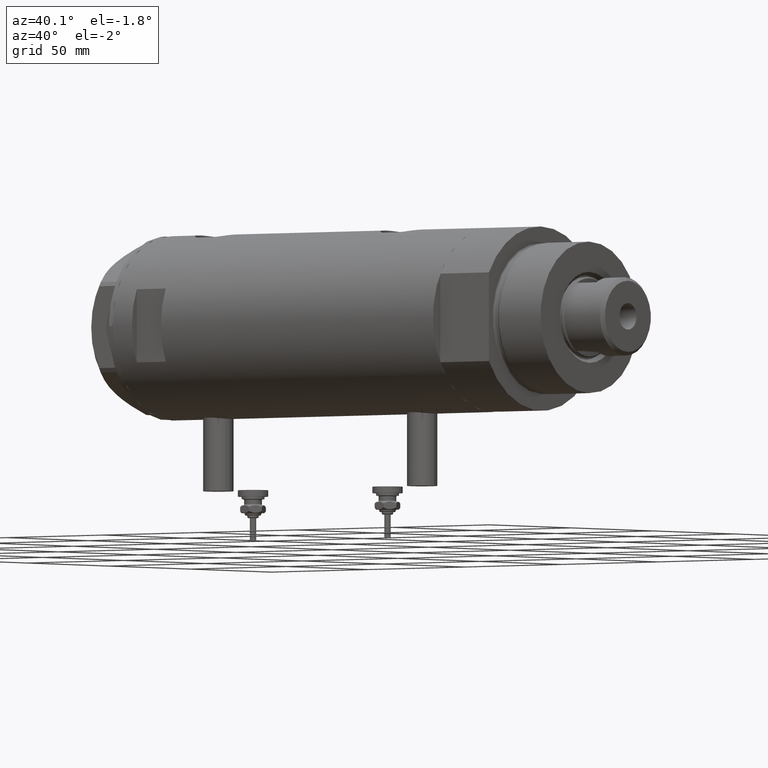
[diagram: clean part render]
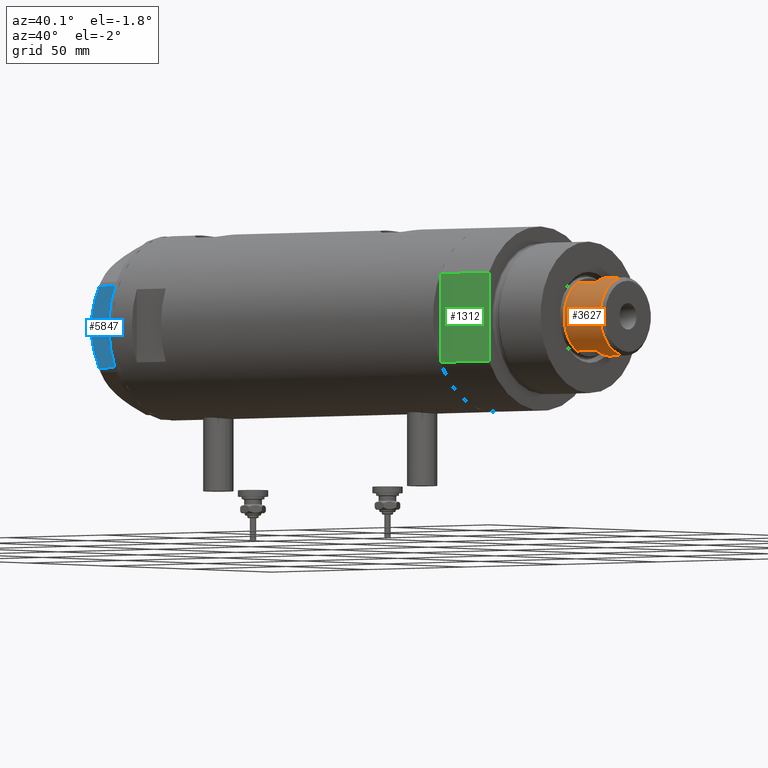
[diagram: same view with three faces highlighted in distinct colors, each labeled with its STEP entity id]
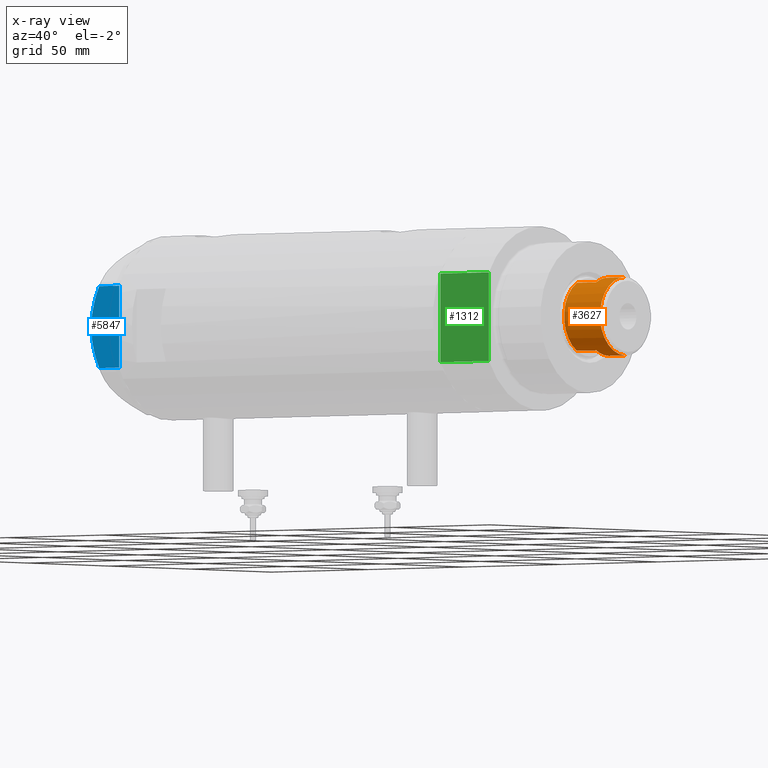
[diagram: x-ray of the same camera — body ghosted, the three highlighted faces saturated]
A machine part, auxiliary view with three faces highlighted in distinct colors.
The next image is the same camera in x-ray (body ghosted, the three faces saturated) — at least one of them is partly hidden behind the body in this view.
Their STEP definitions:

[orange] entity #3627 — the highlighted cylindrical surface (partial cylindrical patch) has radius 15.5 mm, axis along (-1, -0, 0).
#185 = VECTOR ( 'NONE', #950, 1000.000000000000000 ) ;
#250 = VERTEX_POINT ( 'NONE', #1012 ) ;
#332 = EDGE_CURVE ( 'NONE', #5041, #3613, #3726, .T. ) ;
#604 = CARTESIAN_POINT ( 'NONE',  ( 13.48630416385452691, -7.639999999999914415, 190.0000000000000000 ) ) ;
#803 = DIRECTION ( 'NONE',  ( 1.000000000000000000, 0.000000000000000000, 0.000000000000000000 ) ) ;
#892 = ORIENTED_EDGE ( 'NONE', *, *, #3503, .T. ) ;
#930 = AXIS2_PLACEMENT_3D ( 'NONE', #3690, #5026, #4576 ) ;
#950 = DIRECTION ( 'NONE',  ( -0.000000000000000000, -0.000000000000000000, -1.000000000000000000 ) ) ;
#1008 = EDGE_CURVE ( 'NONE', #5041, #5791, #1101, .T. ) ;
#1012 = CARTESIAN_POINT ( 'NONE',  ( -13.48630416385452335, -7.640000000000004121, 200.0000000000000000 ) ) ;
#1101 = CIRCLE ( 'NONE', #3127, 15.50000000000000000 ) ;
#1104 = EDGE_CURVE ( 'NONE', #2909, #3613, #2167, .T. ) ;
#1147 = LINE ( 'NONE', #3874, #3926 ) ;
#1180 = DIRECTION ( 'NONE',  ( -0.000000000000000000, -0.000000000000000000, -1.000000000000000000 ) ) ;
#1514 = VERTEX_POINT ( 'NONE', #3282 ) ;
#1516 = DIRECTION ( 'NONE',  ( -0.000000000000000000, -0.000000000000000000, -1.000000000000000000 ) ) ;
#1603 = CYLINDRICAL_SURFACE ( 'NONE', #3329, 15.49999999999999822 ) ;
#1610 = LINE ( 'NONE', #3478, #4507 ) ;
#1704 = ORIENTED_EDGE ( 'NONE', *, *, #4774, .F. ) ;
#1716 = DIRECTION ( 'NONE',  ( 1.000000000000000000, 0.000000000000000000, 0.000000000000000000 ) ) ;
#1733 = DIRECTION ( 'NONE',  ( 0.000000000000000000, 0.000000000000000000, 1.000000000000000000 ) ) ;
#1770 = ORIENTED_EDGE ( 'NONE', *, *, #332, .F. ) ;
#1862 = ORIENTED_EDGE ( 'NONE', *, *, #4334, .T. ) ;
#1947 = ORIENTED_EDGE ( 'NONE', *, *, #2509, .T. ) ;
#1963 = FACE_OUTER_BOUND ( 'NONE', #3209, .T. ) ;
#1976 = AXIS2_PLACEMENT_3D ( 'NONE', #4627, #3072, #1716 ) ;
#2000 = DIRECTION ( 'NONE',  ( -0.000000000000000000, -0.000000000000000000, -1.000000000000000000 ) ) ;
#2167 = CIRCLE ( 'NONE', #2640, 15.49999999999999822 ) ;
#2222 = ORIENTED_EDGE ( 'NONE', *, *, #1104, .T. ) ;
#2310 = CARTESIAN_POINT ( 'NONE',  ( -15.50000000000000178, 0.000000000000000000, 200.0000000000000000 ) ) ;
#2420 = DIRECTION ( 'NONE',  ( -1.000000000000000000, 0.000000000000000000, 0.000000000000000000 ) ) ;
#2505 = ORIENTED_EDGE ( 'NONE', *, *, #1008, .T. ) ;
#2509 = EDGE_CURVE ( 'NONE', #1514, #3973, #3126, .T. ) ;
#2640 = AXIS2_PLACEMENT_3D ( 'NONE', #4932, #1733, #803 ) ;
#2693 = ORIENTED_EDGE ( 'NONE', *, *, #3481, .T. ) ;
#2873 = CARTESIAN_POINT ( 'NONE',  ( 0.000000000000000000, 0.000000000000000000, 200.0000000000000000 ) ) ;
#2909 = VERTEX_POINT ( 'NONE', #3509 ) ;
#3072 = DIRECTION ( 'NONE',  ( 0.000000000000000000, 0.000000000000000000, -1.000000000000000000 ) ) ;
#3107 = VERTEX_POINT ( 'NONE', #2310 ) ;
#3126 = CIRCLE ( 'NONE', #1976, 15.49999999999999822 ) ;
#3127 = AXIS2_PLACEMENT_3D ( 'NONE', #5181, #4844, #5211 ) ;
#3209 = EDGE_LOOP ( 'NONE', ( #1704, #1947, #1862, #2693, #892, #2222, #1770, #2505 ) ) ;
#3282 = CARTESIAN_POINT ( 'NONE',  ( 15.49999999999999822, 1.898202538678397163E-15, 208.5999999999999659 ) ) ;
#3329 = AXIS2_PLACEMENT_3D ( 'NONE', #2873, #2000, #2420 ) ;
#3478 = CARTESIAN_POINT ( 'NONE',  ( -15.49999999999999822, 0.000000000000000000, 200.0000000000000000 ) ) ;
#3481 = EDGE_CURVE ( 'NONE', #3107, #250, #3826, .T. ) ;
#3503 = EDGE_CURVE ( 'NONE', #250, #2909, #3664, .T. ) ;
#3509 = CARTESIAN_POINT ( 'NONE',  ( -13.48630416385452513, -7.639999999999921521, 190.0000000000000000 ) ) ;
#3613 = VERTEX_POINT ( 'NONE', #604 ) ;
#3627 = ADVANCED_FACE ( 'NONE', ( #1963 ), #1603, .T. ) ;
#3664 = LINE ( 'NONE', #5504, #185 ) ;
#3690 = CARTESIAN_POINT ( 'NONE',  ( 0.000000000000000000, 0.000000000000000000, 200.0000000000000000 ) ) ;
#3714 = CARTESIAN_POINT ( 'NONE',  ( -15.49999999999999822, 0.000000000000000000, 208.5999999999999659 ) ) ;
#3726 = LINE ( 'NONE', #5571, #5928 ) ;
#3826 = CIRCLE ( 'NONE', #930, 15.50000000000000000 ) ;
#3874 = CARTESIAN_POINT ( 'NONE',  ( 15.49999999999999822, 1.898202538678397163E-15, 200.0000000000000000 ) ) ;
#3926 = VECTOR ( 'NONE', #1516, 1000.000000000000000 ) ;
#3973 = VERTEX_POINT ( 'NONE', #3714 ) ;
#4334 = EDGE_CURVE ( 'NONE', #3973, #3107, #1610, .T. ) ;
#4421 = CARTESIAN_POINT ( 'NONE',  ( 13.48630416385453046, -7.639999999999995239, 200.0000000000000000 ) ) ;
#4433 = CARTESIAN_POINT ( 'NONE',  ( 15.50000000000000178, 1.898202538678397557E-15, 200.0000000000000000 ) ) ;
#4507 = VECTOR ( 'NONE', #1180, 1000.000000000000000 ) ;
#4576 = DIRECTION ( 'NONE',  ( 1.000000000000000000, 0.000000000000000000, 0.000000000000000000 ) ) ;
#4627 = CARTESIAN_POINT ( 'NONE',  ( 0.000000000000000000, 0.000000000000000000, 208.5999999999999659 ) ) ;
#4774 = EDGE_CURVE ( 'NONE', #1514, #5791, #1147, .T. ) ;
#4844 = DIRECTION ( 'NONE',  ( 0.000000000000000000, 0.000000000000000000, 1.000000000000000000 ) ) ;
#4932 = CARTESIAN_POINT ( 'NONE',  ( 0.000000000000000000, 0.000000000000000000, 190.0000000000000000 ) ) ;
#4967 = DIRECTION ( 'NONE',  ( -0.000000000000000000, -0.000000000000000000, -1.000000000000000000 ) ) ;
#5026 = DIRECTION ( 'NONE',  ( 0.000000000000000000, 0.000000000000000000, 1.000000000000000000 ) ) ;
#5041 = VERTEX_POINT ( 'NONE', #4421 ) ;
#5181 = CARTESIAN_POINT ( 'NONE',  ( 0.000000000000000000, 0.000000000000000000, 200.0000000000000000 ) ) ;
#5211 = DIRECTION ( 'NONE',  ( 1.000000000000000000, 0.000000000000000000, 0.000000000000000000 ) ) ;
#5504 = CARTESIAN_POINT ( 'NONE',  ( -13.48630416385452691, -7.640000000000001457, 200.0000000000000000 ) ) ;
#5571 = CARTESIAN_POINT ( 'NONE',  ( 13.48630416385453046, -7.639999999999995239, 200.0000000000000000 ) ) ;
#5791 = VERTEX_POINT ( 'NONE', #4433 ) ;
#5928 = VECTOR ( 'NONE', #4967, 1000.000000000000000 ) ;

[blue] entity #5847 — the highlighted planar face has unit normal (-0, 1, 0).
#141 = ORIENTED_EDGE ( 'NONE', *, *, #2107, .F. ) ;
#203 = AXIS2_PLACEMENT_3D ( 'NONE', #3549, #3948, #4824 ) ;
#276 = VERTEX_POINT ( 'NONE', #3177 ) ;
#282 = CARTESIAN_POINT ( 'NONE',  ( -30.00000000000000355, 10.99748736931232607, 12.55407623651775495 ) ) ;
#294 = EDGE_CURVE ( 'NONE', #276, #5593, #5442, .T. ) ;
#374 = PLANE ( 'NONE',  #203 ) ;
#574 = ORIENTED_EDGE ( 'NONE', *, *, #294, .T. ) ;
#648 = ORIENTED_EDGE ( 'NONE', *, *, #5929, .T. ) ;
#851 = VERTEX_POINT ( 'NONE', #2004 ) ;
#1161 = CARTESIAN_POINT ( 'NONE',  ( -30.00000000000000000, 0.000000000000000000, 14.50000000000000000 ) ) ;
#1448 = CARTESIAN_POINT ( 'NONE',  ( -29.99999999999999289, -15.56759648729806322, 10.70591879357992227 ) ) ;
#1473 = CARTESIAN_POINT ( 'NONE',  ( -29.99999999999999645, -2.827567415490778835, 14.37523681947611109 ) ) ;
#1499 = CARTESIAN_POINT ( 'NONE',  ( -30.00000000000000000, -3.526431665117130798, 14.30125973663612626 ) ) ;
#1619 = CARTESIAN_POINT ( 'NONE',  ( -30.00000000000001421, 14.93680064777130312, 11.00564802993687508 ) ) ;
#1673 = DIRECTION ( 'NONE',  ( 0.000000000000000000, 0.000000000000000000, -1.000000000000000000 ) ) ;
#1764 = VERTEX_POINT ( 'NONE', #4051 ) ;
#1824 = ORIENTED_EDGE ( 'NONE', *, *, #2581, .F. ) ;
#1838 = CARTESIAN_POINT ( 'NONE',  ( -30.00000000000000000, -0.7060353153488233557, 14.49999999999999822 ) ) ;
#1893 = CARTESIAN_POINT ( 'NONE',  ( -30.00000000000000000, -11.00230860792644982, 12.56933207488871673 ) ) ;
#1944 = CARTESIAN_POINT ( 'NONE',  ( -29.99999999999999289, -5.607365453019637513, 14.01139032121647965 ) ) ;
#2004 = CARTESIAN_POINT ( 'NONE',  ( -30.00000000000000000, 16.20050807568875584, 0.000000000000000000 ) ) ;
#2107 = EDGE_CURVE ( 'NONE', #1764, #3000, #4082, .T. ) ;
#2116 = EDGE_CURVE ( 'NONE', #1764, #851, #2126, .T. ) ;
#2126 = LINE ( 'NONE', #5326, #2929 ) ;
#2338 = LINE ( 'NONE', #2704, #4902 ) ;
#2580 = CARTESIAN_POINT ( 'NONE',  ( -30.00000000000000355, 13.64854889245356695, 11.56384586935411996 ) ) ;
#2581 = EDGE_CURVE ( 'NONE', #3000, #5593, #3923, .T. ) ;
#2704 = CARTESIAN_POINT ( 'NONE',  ( -30.00000000000000000, 17.32050807568877460, 0.000000000000000000 ) ) ;
#2822 = CARTESIAN_POINT ( 'NONE',  ( -29.99999999999999645, -12.97715359595204809, 11.81918444541430624 ) ) ;
#2929 = VECTOR ( 'NONE', #1673, 1000.000000000000000 ) ;
#3000 = VERTEX_POINT ( 'NONE', #4134 ) ;
#3097 = CARTESIAN_POINT ( 'NONE',  ( -30.00000000000000000, 16.20050807568875584, 10.40518423703603546 ) ) ;
#3177 = CARTESIAN_POINT ( 'NONE',  ( -30.00000000000000000, -16.20050807568876294, 0.000000000000000000 ) ) ;
#3233 = DIRECTION ( 'NONE',  ( 0.000000000000000000, 0.000000000000000000, 1.000000000000000000 ) ) ;
#3302 = CARTESIAN_POINT ( 'NONE',  ( -29.99999999999999289, -13.63320717147166405, 11.55272916346384804 ) ) ;
#3549 = CARTESIAN_POINT ( 'NONE',  ( -30.00000000000000000, 17.32050807568877460, 14.50000000000000000 ) ) ;
#3796 = CARTESIAN_POINT ( 'NONE',  ( -29.99999999999999289, -14.92797448277034533, 10.99622797424084553 ) ) ;
#3923 = B_SPLINE_CURVE_WITH_KNOTS ( 'NONE', 3,
 ( #5585, #1838, #4173, #1473, #1499, #1944, #4626, #4233, #1893, #2822, #3302, #3796, #1448, #5641 ),
 .UNSPECIFIED., .F., .F.,
 ( 4, 2, 2, 2, 2, 2, 4 ),
 ( 0.06183748343640969869, 0.06393495742991751885, 0.06603243142342535288, 0.07022737941044099319, 0.07442232739745664738, 0.07651980139096448141, 0.07861727538447230157 ),
 .UNSPECIFIED. ) ;
#3948 = DIRECTION ( 'NONE',  ( 1.000000000000000000, 0.000000000000000000, -0.000000000000000000 ) ) ;
#3997 = VECTOR ( 'NONE', #3233, 1000.000000000000000 ) ;
#4051 = CARTESIAN_POINT ( 'NONE',  ( -30.00000000000000000, 16.20050807568875584, 10.40518423703603546 ) ) ;
#4082 = B_SPLINE_CURVE_WITH_KNOTS ( 'NONE', 3,
 ( #3097, #1619, #2580, #5857, #282, #5818, #5390, #5356, #4942, #1161 ),
 .UNSPECIFIED., .F., .F.,
 ( 4, 2, 2, 2, 4 ),
 ( 0.04501738275285960267, 0.04922240792374713014, 0.05132492050919089388, 0.05342743309463465068, 0.06183748343640969869 ),
 .UNSPECIFIED. ) ;
#4134 = CARTESIAN_POINT ( 'NONE',  ( -30.00000000000000000, 0.000000000000000000, 14.50000000000000000 ) ) ;
#4173 = CARTESIAN_POINT ( 'NONE',  ( -30.00000000000000355, -1.418661615092686290, 14.47469700449902952 ) ) ;
#4193 = DIRECTION ( 'NONE',  ( 0.000000000000000000, -1.000000000000000000, 0.000000000000000000 ) ) ;
#4233 = CARTESIAN_POINT ( 'NONE',  ( -29.99999999999999645, -9.671229349009038856, 13.00645148086949554 ) ) ;
#4403 = FACE_OUTER_BOUND ( 'NONE', #5513, .T. ) ;
#4429 = ORIENTED_EDGE ( 'NONE', *, *, #2116, .T. ) ;
#4563 = CARTESIAN_POINT ( 'NONE',  ( -30.00000000000000000, -16.20050807568876294, 10.40518423703603901 ) ) ;
#4626 = CARTESIAN_POINT ( 'NONE',  ( -30.00000000000000000, -6.973771051792319042, 13.72753822183687511 ) ) ;
#4824 = DIRECTION ( 'NONE',  ( -0.000000000000000000, 0.000000000000000000, -1.000000000000000000 ) ) ;
#4902 = VECTOR ( 'NONE', #4193, 1000.000000000000000 ) ;
#4942 = CARTESIAN_POINT ( 'NONE',  ( -30.00000000000000711, 2.830925467268496476, 14.50000000000000533 ) ) ;
#5326 = CARTESIAN_POINT ( 'NONE',  ( -30.00000000000000000, 16.20050807568875584, 14.50000000000000000 ) ) ;
#5356 = CARTESIAN_POINT ( 'NONE',  ( -30.00000000000000000, 5.593935073701701732, 14.09487059093540573 ) ) ;
#5390 = CARTESIAN_POINT ( 'NONE',  ( -30.00000000000000711, 8.981118657900116986, 13.19130745470829247 ) ) ;
#5442 = LINE ( 'NONE', #5904, #3997 ) ;
#5513 = EDGE_LOOP ( 'NONE', ( #141, #4429, #648, #574, #1824 ) ) ;
#5585 = CARTESIAN_POINT ( 'NONE',  ( -30.00000000000000000, 0.000000000000000000, 14.50000000000000000 ) ) ;
#5593 = VERTEX_POINT ( 'NONE', #4563 ) ;
#5641 = CARTESIAN_POINT ( 'NONE',  ( -30.00000000000000000, -16.20050807568876294, 10.40518423703603901 ) ) ;
#5818 = CARTESIAN_POINT ( 'NONE',  ( -30.00000000000000000, 9.655259153795977767, 12.99093232113973606 ) ) ;
#5847 = ADVANCED_FACE ( 'NONE', ( #4403 ), #374, .F. ) ;
#5857 = CARTESIAN_POINT ( 'NONE',  ( -30.00000000000000000, 11.66725319103952607, 12.31690447555093293 ) ) ;
#5904 = CARTESIAN_POINT ( 'NONE',  ( -30.00000000000000000, -16.20050807568876294, 14.50000000000000000 ) ) ;
#5929 = EDGE_CURVE ( 'NONE', #851, #276, #2338, .T. ) ;

[green] entity #1312 — the highlighted planar face has unit normal (-0, 1, 0).
#70 = LINE ( 'NONE', #5029, #3991 ) ;
#92 = CARTESIAN_POINT ( 'NONE',  ( -17.55704986607943141, -32.00000000000000000, 0.000000000000000000 ) ) ;
#143 = PLANE ( 'NONE',  #2266 ) ;
#325 = EDGE_CURVE ( 'NONE', #2986, #5427, #70, .T. ) ;
#473 = DIRECTION ( 'NONE',  ( -1.000000000000000000, -0.000000000000000000, -0.000000000000000000 ) ) ;
#582 = CARTESIAN_POINT ( 'NONE',  ( 17.55704986607943496, -32.00000000000000000, 25.19999999999999929 ) ) ;
#687 = EDGE_CURVE ( 'NONE', #2138, #5104, #4595, .T. ) ;
#754 = LINE ( 'NONE', #2701, #2939 ) ;
#1195 = CARTESIAN_POINT ( 'NONE',  ( -17.55704986607943496, -32.00000000000000000, 25.19999999999999929 ) ) ;
#1312 = ADVANCED_FACE ( 'NONE', ( #4264 ), #143, .F. ) ;
#1422 = LINE ( 'NONE', #92, #3621 ) ;
#1427 = CARTESIAN_POINT ( 'NONE',  ( 0.000000000000000000, -32.00000000000000000, 0.000000000000000000 ) ) ;
#1538 = DIRECTION ( 'NONE',  ( -0.000000000000000000, -0.000000000000000000, 1.000000000000000000 ) ) ;
#1555 = EDGE_CURVE ( 'NONE', #5104, #2599, #1422, .T. ) ;
#1667 = ORIENTED_EDGE ( 'NONE', *, *, #4111, .T. ) ;
#2138 = VERTEX_POINT ( 'NONE', #4883 ) ;
#2220 = DIRECTION ( 'NONE',  ( -1.000000000000000000, -0.000000000000000000, -0.000000000000000000 ) ) ;
#2266 = AXIS2_PLACEMENT_3D ( 'NONE', #3801, #5646, #3339 ) ;
#2416 = ORIENTED_EDGE ( 'NONE', *, *, #325, .T. ) ;
#2438 = LINE ( 'NONE', #4296, #4884 ) ;
#2599 = VERTEX_POINT ( 'NONE', #5186 ) ;
#2701 = CARTESIAN_POINT ( 'NONE',  ( -17.55704986607943141, -32.00000000000000000, 0.000000000000000000 ) ) ;
#2827 = CARTESIAN_POINT ( 'NONE',  ( -17.55704986607943141, -32.00000000000000000, 0.000000000000000000 ) ) ;
#2891 = EDGE_CURVE ( 'NONE', #2599, #5427, #754, .T. ) ;
#2939 = VECTOR ( 'NONE', #4555, 1000.000000000000000 ) ;
#2986 = VERTEX_POINT ( 'NONE', #582 ) ;
#3218 = VECTOR ( 'NONE', #473, 1000.000000000000000 ) ;
#3339 = DIRECTION ( 'NONE',  ( 0.000000000000000000, -0.000000000000000000, 1.000000000000000000 ) ) ;
#3342 = DIRECTION ( 'NONE',  ( -1.000000000000000000, -0.000000000000000000, -0.000000000000000000 ) ) ;
#3458 = ORIENTED_EDGE ( 'NONE', *, *, #2891, .F. ) ;
#3499 = ORIENTED_EDGE ( 'NONE', *, *, #687, .F. ) ;
#3621 = VECTOR ( 'NONE', #3342, 1000.000000000000000 ) ;
#3801 = CARTESIAN_POINT ( 'NONE',  ( -17.55704986607943141, -32.00000000000000000, 0.000000000000000000 ) ) ;
#3991 = VECTOR ( 'NONE', #2220, 1000.000000000000000 ) ;
#4111 = EDGE_CURVE ( 'NONE', #2138, #2986, #2438, .T. ) ;
#4190 = EDGE_LOOP ( 'NONE', ( #2416, #3458, #5865, #3499, #1667 ) ) ;
#4264 = FACE_OUTER_BOUND ( 'NONE', #4190, .T. ) ;
#4296 = CARTESIAN_POINT ( 'NONE',  ( 17.55704986607943141, -32.00000000000000000, 0.000000000000000000 ) ) ;
#4555 = DIRECTION ( 'NONE',  ( -0.000000000000000000, -0.000000000000000000, 1.000000000000000000 ) ) ;
#4595 = LINE ( 'NONE', #2827, #3218 ) ;
#4883 = CARTESIAN_POINT ( 'NONE',  ( 17.55704986607943141, -32.00000000000000000, 0.000000000000000000 ) ) ;
#4884 = VECTOR ( 'NONE', #1538, 1000.000000000000000 ) ;
#5029 = CARTESIAN_POINT ( 'NONE',  ( -17.55704986607943141, -32.00000000000000000, 25.19999999999999929 ) ) ;
#5104 = VERTEX_POINT ( 'NONE', #1427 ) ;
#5186 = CARTESIAN_POINT ( 'NONE',  ( -17.55704986607943496, -32.00000000000000000, 0.000000000000000000 ) ) ;
#5427 = VERTEX_POINT ( 'NONE', #1195 ) ;
#5646 = DIRECTION ( 'NONE',  ( -0.000000000000000000, 1.000000000000000000, 0.000000000000000000 ) ) ;
#5865 = ORIENTED_EDGE ( 'NONE', *, *, #1555, .F. ) ;